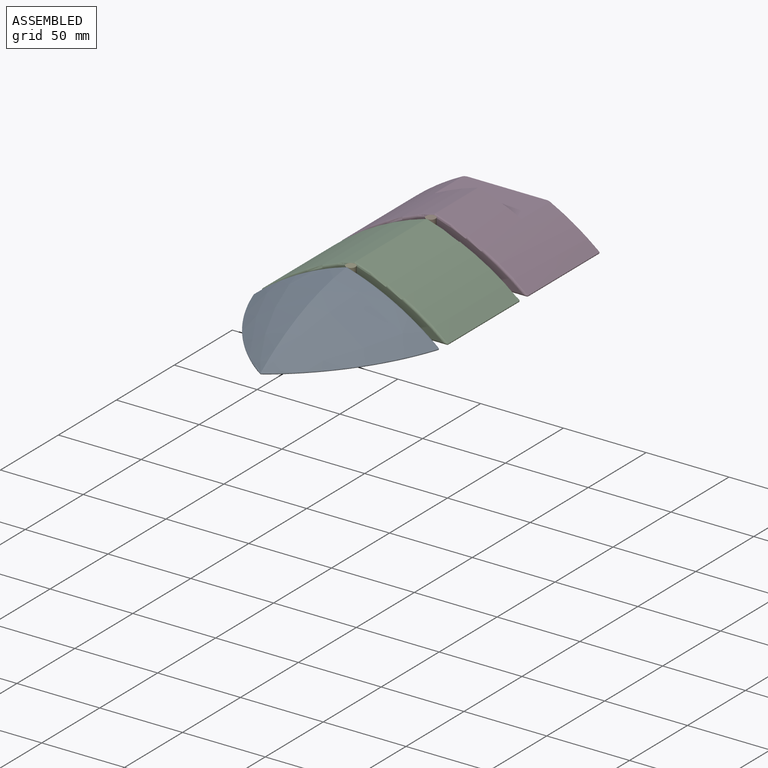
[diagram: assembled view]
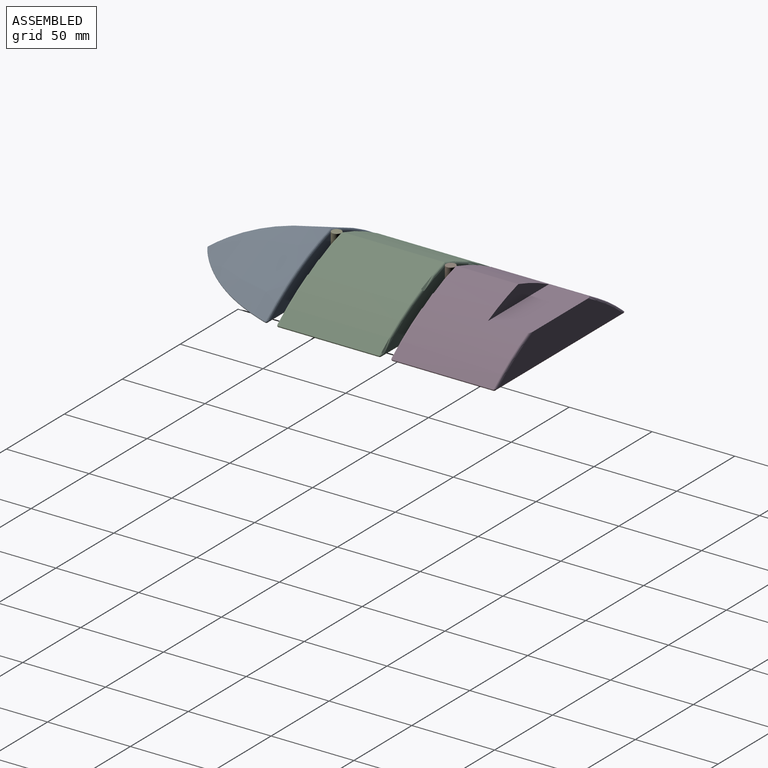
[diagram: assembled view, second angle]
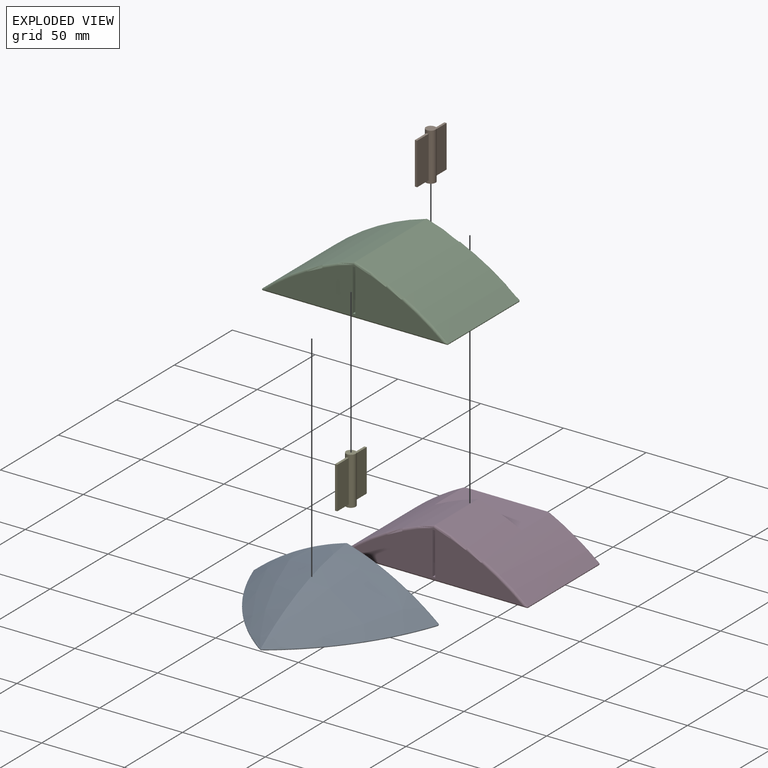
[diagram: exploded view]
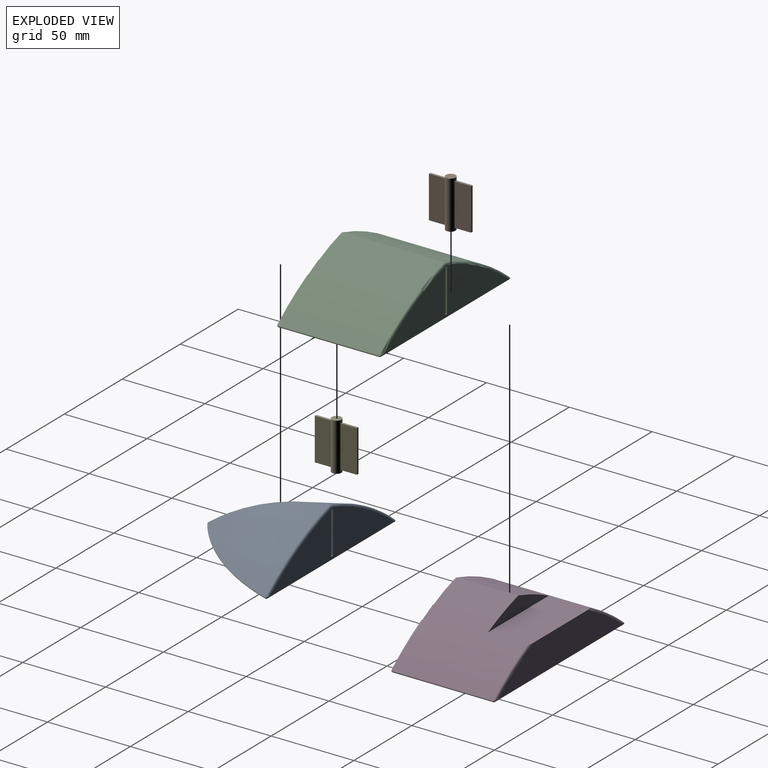
[diagram: exploded view, second angle]
ASSEMBLY  parts=5 mates=4
PART A: 18 faces, bbox 114.3x76.5x31.6 mm
  f0: plane 106.31x27.76mm, normal (0,1,0), area 1675.7mm2, adj f4,f5,f6,f7,f13,f14,f17
  f1: plane 110.55x73.4mm, normal (0,0,-1), area 4957.4mm2, adj f9,f10,f12,f13,f15
  f2: bspline ~76.2x57.15mm, area 1963.7mm2, adj f3,f9,f17
  f3: bspline ~76.2x57.15mm, area 1963.7mm2, adj f2,f10,f14
  f4: plane 25.65x10.16mm, normal (1,0,0), area 260.6mm2, adj f0,f5,f7,f8
  f5: plane 10.16x1.52mm, normal (0,0,-1), area 15.5mm2, adj f0,f4,f6,f8
  f6: plane 25.65x10.16mm, normal (-1,0,0), area 260.6mm2, adj f0,f5,f7,f8
  f7: plane 10.16x1.52mm, normal (0,0,1), area 15.5mm2, adj f0,f4,f6,f8
  f8: plane 25.65x1.52mm, normal (0,1,0), area 39.1mm2, adj f4,f5,f6,f7
  f9: bspline ~76.37x57.32mm, area 112.1mm2, adj f1,f2,f10,f15
  f10: bspline ~76.37x57.32mm, area 112.1mm2, adj f1,f3,f9,f12
  f11: bspline ~3.53x1.38mm, area 2.1mm2, adj f12,f13,f14
  f12: bspline ~1.5x1.14mm, area 0.4mm2, adj f1,f10,f11,f14
  f13: cylinder r=1.27mm len=110.55mm, axis (1,0,0), area 216.3mm2, adj f0,f1,f11,f16
  f14: bspline ~57.94x31.56mm, area 137.6mm2, adj f0,f3,f11,f12,f17
  f15: bspline ~1.5x1.14mm, area 0.4mm2, adj f1,f9,f16,f17
  f16: bspline ~3.53x1.38mm, area 2.1mm2, adj f13,f15,f17
  f17: bspline ~57.94x31.61mm, area 137.6mm2, adj f0,f2,f14,f15,f16
PART B: 13 faces, bbox 25.4x5.8x29 mm
  f0: cylinder r=2.92mm len=28.96mm, axis (0,0,-1), area 459.8mm2, adj f1,f2,f4,f5,f6,f7,f8,f9
  f1: plane 5.84x5.84mm, normal (0,0,1), area 26.8mm2, adj f0
  f2: plane 5.84x5.84mm, normal (0,0,-1), area 26.8mm2, adj f0
  f3: plane 25.4x1.4mm, normal (-1,0,0), area 35.5mm2, adj f4,f5,f6,f7
  f4: plane 9.86x1.4mm, normal (0,0,-1), area 13.7mm2, adj f0,f3,f5,f7
  f5: plane 25.4x9.86mm, normal (0,-1,0), area 250.5mm2, adj f0,f3,f4,f6
  f6: plane 9.86x1.4mm, normal (0,0,1), area 13.7mm2, adj f0,f3,f5,f7
  f7: plane 25.4x9.86mm, normal (0,1,0), area 250.5mm2, adj f0,f3,f4,f6
  f8: plane 25.4x9.86mm, normal (0,1,0), area 250.5mm2, adj f0,f9,f11,f12
  f9: plane 9.86x1.4mm, normal (0,0,1), area 13.7mm2, adj f0,f8,f10,f12
  f10: plane 25.4x9.86mm, normal (0,-1,0), area 250.5mm2, adj f0,f9,f11,f12
  f11: plane 9.86x1.4mm, normal (0,0,-1), area 13.7mm2, adj f0,f8,f10,f12
  f12: plane 25.4x1.4mm, normal (1,0,0), area 35.5mm2, adj f8,f9,f10,f11
PART C: 27 faces, bbox 128.2x63.5x43.3 mm
  f0: plane 107.26x27.89mm, normal (0,-1,0), area 1703.2mm2, adj f10,f11,f12,f13,f23,f24,f26
  f1: plane 107.26x27.89mm, normal (0,1,0), area 1703.2mm2, adj f5,f6,f7,f8,f18,f19,f21
  f2: cylinder r=152.4mm len=60.96mm, axis (0,-1,0), area 3893.7mm2, adj f3,f15,f21,f26
  f3: cylinder r=152.4mm len=60.96mm, axis (0,-1,0), area 3893.7mm2, adj f2,f16,f19,f24
  f4: plane 111.51x60.96mm, normal (0,0,-1), area 6797.9mm2, adj f15,f16,f18,f23
  f5: plane 25.65x10.16mm, normal (1,0,0), area 260.6mm2, adj f1,f6,f8,f9
  f6: plane 10.16x1.52mm, normal (0,0,-1), area 15.5mm2, adj f1,f5,f7,f9
  f7: plane 25.65x10.16mm, normal (-1,0,0), area 260.6mm2, adj f1,f6,f8,f9
  f8: plane 10.16x1.52mm, normal (0,0,1), area 15.5mm2, adj f1,f5,f7,f9
  f9: plane 25.65x1.52mm, normal (0,1,0), area 39.1mm2, adj f5,f6,f7,f8
  f10: plane 25.65x10.16mm, normal (-1,0,0), area 260.6mm2, adj f0,f11,f13,f14
  f11: plane 10.16x1.52mm, normal (0,0,-1), area 15.5mm2, adj f0,f10,f12,f14
  f12: plane 25.65x10.16mm, normal (1,0,0), area 260.6mm2, adj f0,f11,f13,f14
  f13: plane 10.16x1.52mm, normal (0,0,1), area 15.5mm2, adj f0,f10,f12,f14
  f14: plane 25.65x1.52mm, normal (0,-1,0), area 39.1mm2, adj f10,f11,f12,f13
  f15: cylinder r=0.51mm len=60.96mm, axis (0,-1,0), area 75.8mm2, adj f2,f4,f20,f25
  f16: cylinder r=0.51mm len=60.96mm, axis (0,-1,0), area 75.8mm2, adj f3,f4,f17,f22
  f17: bspline ~3.53x1.38mm, area 2.1mm2, adj f16,f18,f19
  f18: cylinder r=1.27mm len=111.51mm, axis (-1,0,0), area 219.4mm2, adj f1,f4,f17,f20
  f19: torus R=151.13mm, axis (0,-1,0), area 125.2mm2, adj f1,f3,f17,f21
  f20: bspline ~3.53x1.38mm, area 2.1mm2, adj f15,f18,f21
  f21: torus R=151.13mm, axis (0,-1,0), area 125.2mm2, adj f1,f2,f19,f20
  f22: bspline ~3.53x1.38mm, area 2.1mm2, adj f16,f23,f24
  f23: cylinder r=1.27mm len=111.51mm, axis (1,0,0), area 219.4mm2, adj f0,f4,f22,f25
  f24: torus R=151.13mm, axis (0,-1,0), area 125.2mm2, adj f0,f3,f22,f26
  f25: bspline ~3.53x1.38mm, area 2.1mm2, adj f15,f23,f26
  f26: torus R=151.13mm, axis (0,-1,0), area 125.2mm2, adj f0,f2,f24,f25
PART D: 24 faces, bbox 128.2x63.5x43.3 mm
  f0: cylinder r=152.4mm len=60.96mm, axis (0,-1,0), area 3212.1mm2, adj f2,f4,f11,f12,f13,f23
  f1: plane 107.26x19.05mm, normal (0,1,0), area 1518.1mm2, adj f2,f12,f15,f17
  f2: torus R=151.13mm, axis (0,-1,0), area 71.2mm2, adj f0,f1,f12,f18
  f3: plane 107.26x27.89mm, normal (0,-1,0), area 1703.2mm2, adj f6,f7,f8,f9,f20,f21,f23
  f4: cylinder r=152.4mm len=60.96mm, axis (0,-1,0), area 3212.1mm2, adj f0,f11,f12,f14,f15,f21
  f5: plane 111.51x60.96mm, normal (0,0,-1), area 6797.9mm2, adj f13,f14,f17,f20
  f6: plane 25.65x10.16mm, normal (-1,0,0), area 260.6mm2, adj f3,f7,f9,f10
  f7: plane 10.16x1.52mm, normal (0,0,-1), area 15.5mm2, adj f3,f6,f8,f10
  f8: plane 25.65x10.16mm, normal (1,0,0), area 260.6mm2, adj f3,f7,f9,f10
  f9: plane 10.16x1.52mm, normal (0,0,1), area 15.5mm2, adj f3,f6,f8,f10
  f10: plane 25.65x1.52mm, normal (0,-1,0), area 39.1mm2, adj f6,f7,f8,f9
  f11: plane 52.62x10.16mm, normal (0,1,0), area 291.9mm2, adj f0,f4,f12
  f12: plane 52.63x25.4mm, normal (0,0,1), area 1335.1mm2, adj f0,f1,f2,f4,f11,f15
  f13: cylinder r=0.51mm len=60.96mm, axis (0,-1,0), area 75.8mm2, adj f0,f5,f18,f22
  f14: cylinder r=0.51mm len=60.96mm, axis (0,-1,0), area 75.8mm2, adj f4,f5,f16,f19
  f15: torus R=151.13mm, axis (0,-1,0), area 71.2mm2, adj f1,f4,f12,f16
  f16: bspline ~3.53x1.38mm, area 2.1mm2, adj f14,f15,f17
  f17: cylinder r=1.27mm len=111.51mm, axis (-1,0,0), area 219.4mm2, adj f1,f5,f16,f18
  f18: bspline ~3.53x1.38mm, area 2.1mm2, adj f2,f13,f17
  f19: bspline ~3.53x1.38mm, area 2.1mm2, adj f14,f20,f21
  f20: cylinder r=1.27mm len=111.51mm, axis (1,0,0), area 219.4mm2, adj f3,f5,f19,f22
  f21: torus R=151.13mm, axis (0,-1,0), area 125.2mm2, adj f3,f4,f19,f23
  f22: bspline ~3.53x1.38mm, area 2.1mm2, adj f13,f20,f23
  f23: torus R=151.13mm, axis (0,-1,0), area 125.2mm2, adj f0,f3,f21,f22
PART E: same geometry as B
PLACE A t=(-44.99,-14.62,-24.17)mm
PLACE B rot(axis=(0,0,1),90deg) t=(-44.99,57.03,-23.29)mm
PLACE C t=(-44.99,-9.19,-24.17)mm
PLACE D t=(-44.99,59.74,-24.17)mm
PLACE E rot(axis=(0,0,1),90deg) t=(-44.99,-11.91,-23.29)mm
MATE fastened E.f6 <-> A.f5  axis (0,0,1) through (-44.99,-19.7,3.89)mm
MATE fastened B.f6 <-> C.f6  axis (0,0,1) through (-44.99,49.23,3.89)mm
MATE fastened E.f9 <-> C.f11  axis (0,0,1) through (-44.99,-4.11,3.89)mm
MATE fastened B.f9 <-> D.f7  axis (0,0,1) through (-44.99,64.82,3.89)mm
